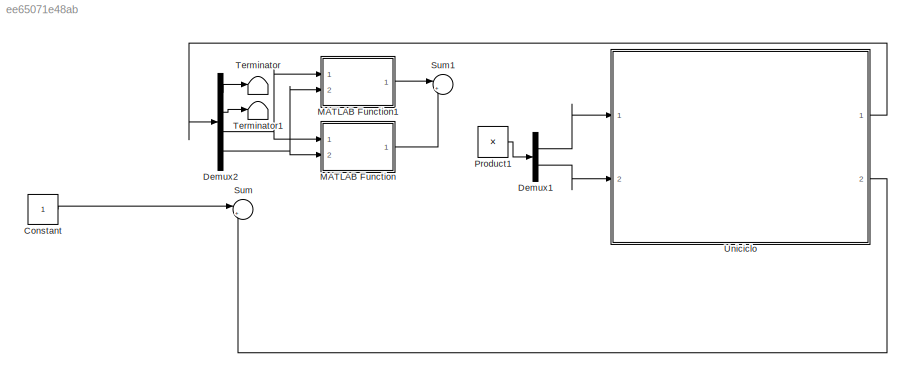
MODEL slx_ee65071e48ab
KIND model
CONFIG AbsTol = auto
CONFIG EnableMultiTasking = off
CONFIG FixedStep = auto
CONFIG MaxStep = auto
CONFIG MinStep = auto
CONFIG RelTol = 1e-3
CONFIG SampleTimeConstraint = Unconstrained
CONFIG Solver = VariableStepAuto
CONFIG SolverName = VariableStepAuto
CONFIG StartTime = 0.0
CONFIG StopTime = 10.0
BLOCK [Constant] Constant
BLOCK [Demux] Demux1
  Outputs = 2
  Ports = [1, 2]
BLOCK [Demux] Demux2
  Ports = [1, 4]
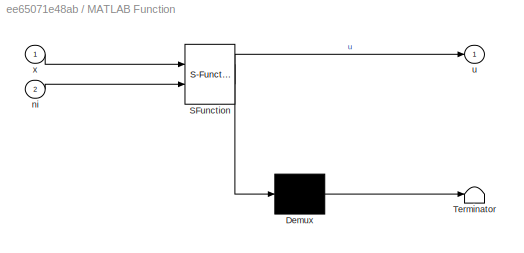
BLOCK [SubSystem] MATLAB Function
  ErrorFcn = Stateflow.Translate.translate
  PermitHierarchicalResolution = ExplicitOnly
  Ports = [2, 1]
  RequestExecContextInheritance = off
  SFBlockType = MATLAB Function
  TreatAsAtomicUnit = on
BLOCK [Demux] MATLAB Function/ Demux 
  Outputs = 1
  Ports = [1, 1]
BLOCK [S-Function] MATLAB Function/ SFunction 
  EnableBusSupport = off
  FunctionName = sf_sfun
  PortCounts = [2 2]
  Ports = [2, 2]
  SFcnIsStateOwnerBlock = off
  SFunctionDeploymentMode = off
  Tag = Stateflow S-Function 2
BLOCK [Terminator] MATLAB Function/ Terminator 
BLOCK [Inport] MATLAB Function/ni
  Port = 2
BLOCK [Outport] MATLAB Function/u
BLOCK [Inport] MATLAB Function/x
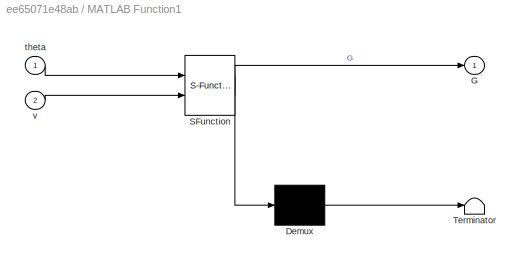
BLOCK [SubSystem] MATLAB Function1
  ErrorFcn = Stateflow.Translate.translate
  PermitHierarchicalResolution = ExplicitOnly
  Ports = [2, 1]
  RequestExecContextInheritance = off
  SFBlockType = MATLAB Function
  TreatAsAtomicUnit = on
BLOCK [Demux] MATLAB Function1/ Demux 
  Outputs = 1
  Ports = [1, 1]
BLOCK [S-Function] MATLAB Function1/ SFunction 
  EnableBusSupport = off
  FunctionName = sf_sfun
  PortCounts = [2 2]
  Ports = [2, 2]
  SFcnIsStateOwnerBlock = off
  SFunctionDeploymentMode = off
  Tag = Stateflow S-Function 1
BLOCK [Terminator] MATLAB Function1/ Terminator 
BLOCK [Outport] MATLAB Function1/G
BLOCK [Inport] MATLAB Function1/theta
BLOCK [Inport] MATLAB Function1/v
  Port = 2
BLOCK [Product] Product1
  Ports = [2, 1]
BLOCK [Sum] Sum
  Inputs = |+-
  Ports = [2, 1]
BLOCK [Sum] Sum1
  Inputs = |++
  Ports = [2, 1]
BLOCK [Terminator] Terminator
BLOCK [Terminator] Terminator1
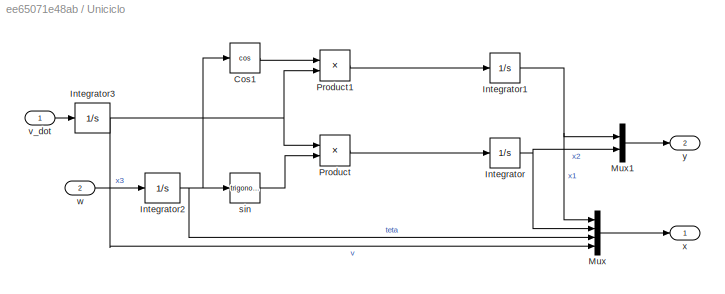
BLOCK [SubSystem] Uniciclo
  Ports = [2, 2]
  RequestExecContextInheritance = off
BLOCK [Trigonometry] Uniciclo/Cos1
  Operator = cos
  Ports = [1, 1]
BLOCK [Integrator] Uniciclo/Integrator
  Ports = [1, 1]
BLOCK [Integrator] Uniciclo/Integrator1
  Ports = [1, 1]
BLOCK [Integrator] Uniciclo/Integrator2
  InitialCondition = pi/2
  NameLocation = top
  Ports = [1, 1]
BLOCK [Integrator] Uniciclo/Integrator3
  InitialCondition = pi/2
  NameLocation = top
  Ports = [1, 1]
BLOCK [Mux] Uniciclo/Mux
  DisplayOption = bar
  Ports = [4, 1]
BLOCK [Mux] Uniciclo/Mux1
  DisplayOption = bar
  Inputs = 2
  Ports = [2, 1]
BLOCK [Product] Uniciclo/Product
  Ports = [2, 1]
BLOCK [Product] Uniciclo/Product1
  Ports = [2, 1]
BLOCK [Trigonometry] Uniciclo/sin
  Ports = [1, 1]
BLOCK [Inport] Uniciclo/v_dot
BLOCK [Inport] Uniciclo/w
  Port = 2
BLOCK [Outport] Uniciclo/x
BLOCK [Outport] Uniciclo/y
  Port = 2
LINE Constant:1 -> Sum:1
LINE Demux1:1 -> Uniciclo:1
LINE Demux1:2 -> Uniciclo:2
LINE Demux2:1 -> Terminator:1
LINE Demux2:2 -> Terminator1:1
NET Demux2:3 -> MATLAB Function1:1, MATLAB Function:1
NET Demux2:4 -> MATLAB Function1:2, MATLAB Function:2
LINE MATLAB Function1:1 -> Sum1:1
LINE MATLAB Function:1 -> Sum1:2
LINE Product1:1 -> Demux1:1
LINE Uniciclo/Cos1:1 -> Uniciclo/Product1:1
NET Uniciclo/Integrator1:1 -> Uniciclo/Mux1:1, Uniciclo/Mux:1
NET Uniciclo/Integrator2:1 -> Uniciclo/Cos1:1, Uniciclo/Mux:3, Uniciclo/sin:1
NET Uniciclo/Integrator3:1 -> Uniciclo/Mux:4, Uniciclo/Product1:2, Uniciclo/Product:1
NET Uniciclo/Integrator:1 -> Uniciclo/Mux1:2, Uniciclo/Mux:2
LINE Uniciclo/Mux1:1 -> Uniciclo/y:1
LINE Uniciclo/Mux:1 -> Uniciclo/x:1
LINE Uniciclo/Product1:1 -> Uniciclo/Integrator1:1
LINE Uniciclo/Product:1 -> Uniciclo/Integrator:1
LINE Uniciclo/sin:1 -> Uniciclo/Product:2
LINE Uniciclo/v_dot:1 -> Uniciclo/Integrator3:1
LINE Uniciclo/w:1 -> Uniciclo/Integrator2:1
LINE Uniciclo:1 -> Demux2:1
LINE Uniciclo:2 -> Sum:2
note: NET lines group one-source signal fan-out (src -> all destinations, sorted); 1:1 wires keep LINE
CHART MATLAB Function states=1 transitions=1
  STATE_LABEL 'eML_blk_kernel()'
  STATE_LABEL 'SCRIPT:\nfunction u = Linearized(x,ni)\ntheta = x(3);\nv = x(4);\nE_inv = inv_E(theta, v);\nG = Gamma(theta, v);\nu =  -E_inv*G + E_inv*ni;\nend\n\n% gamma\nfunction G = Gamma(theta, v)\nG = [0;0];\nend\n% \nfunction E_inv = inv_E(theta, v)\nE = [cos(theta) -v*sin(theta);\n\t sin(theta)  v*cos(theta)];\nE_inv = inv(E);\nend\n'
CHART MATLAB Function1 states=1 transitions=1
  STATE_LABEL 'eML_blk_kernel()'
  STATE_LABEL 'SCRIPT:\nfunction G = Gamma(theta, v)\nG = [0;0];\nend\n'
CHART  states=0 transitions=0
CHART  states=0 transitions=0
